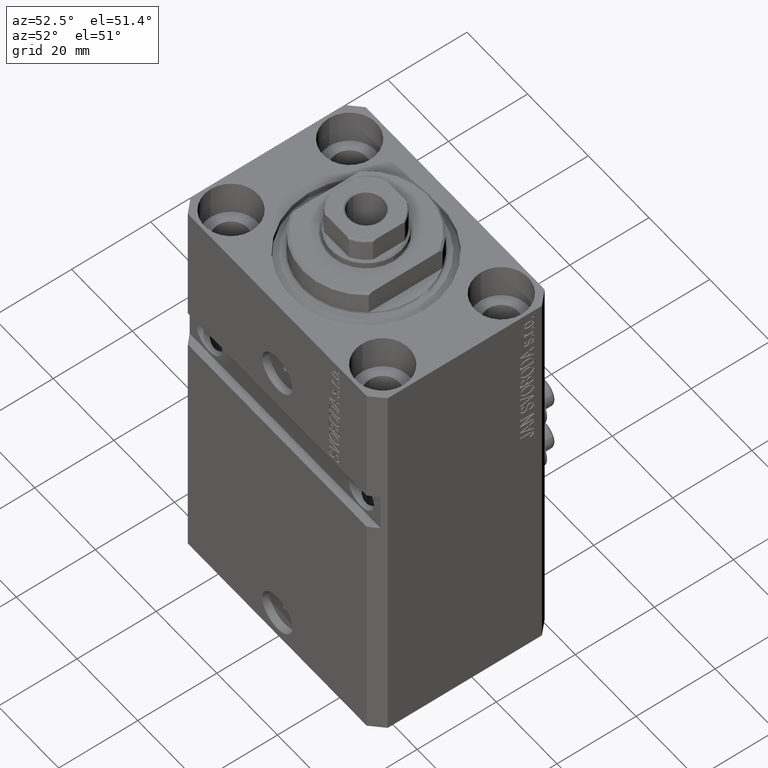
[diagram: clean part render]
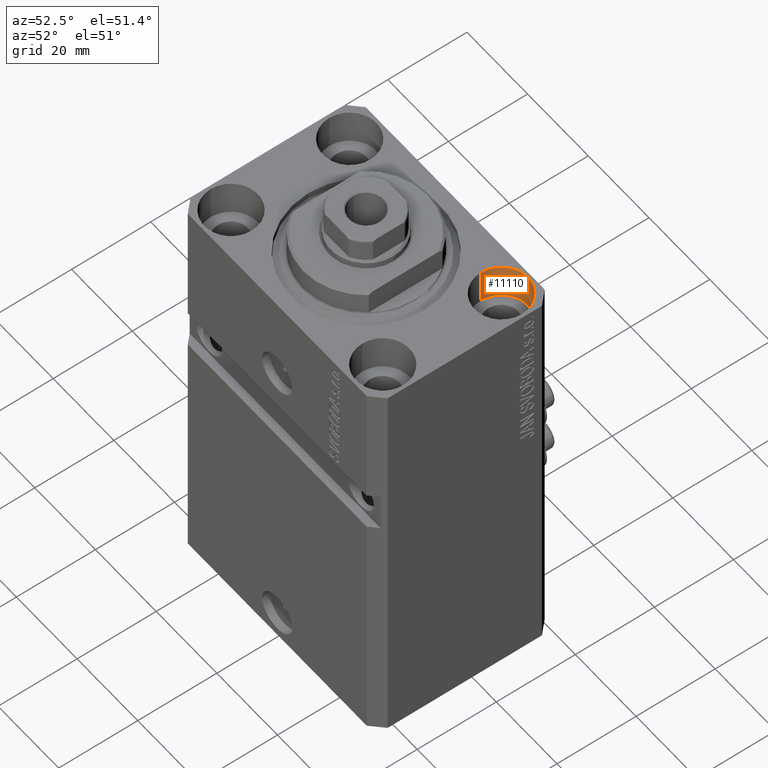
[diagram: same view with one face highlighted and labeled with its STEP entity id]
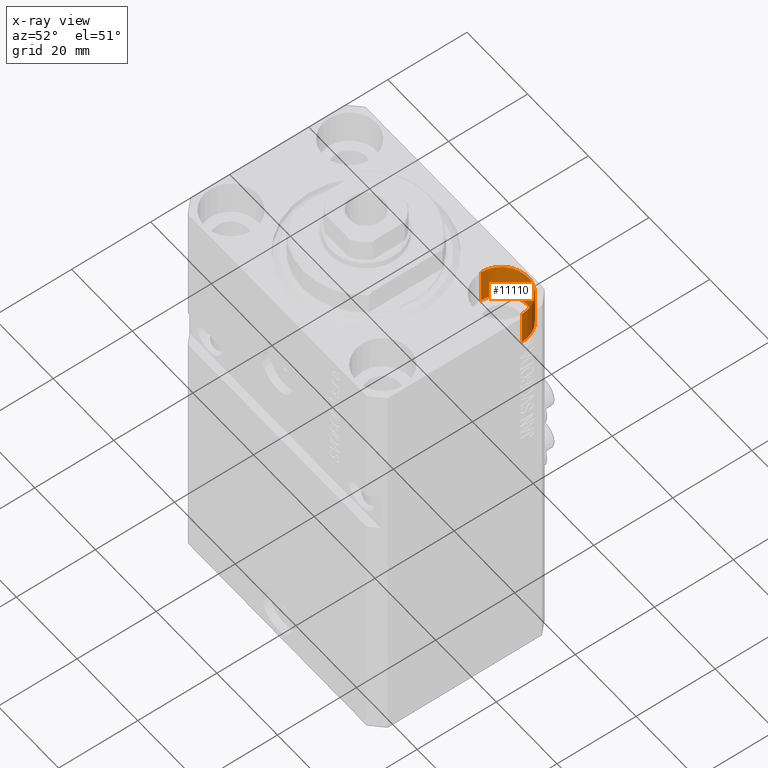
[diagram: x-ray of the same camera — body ghosted, the highlighted face saturated]
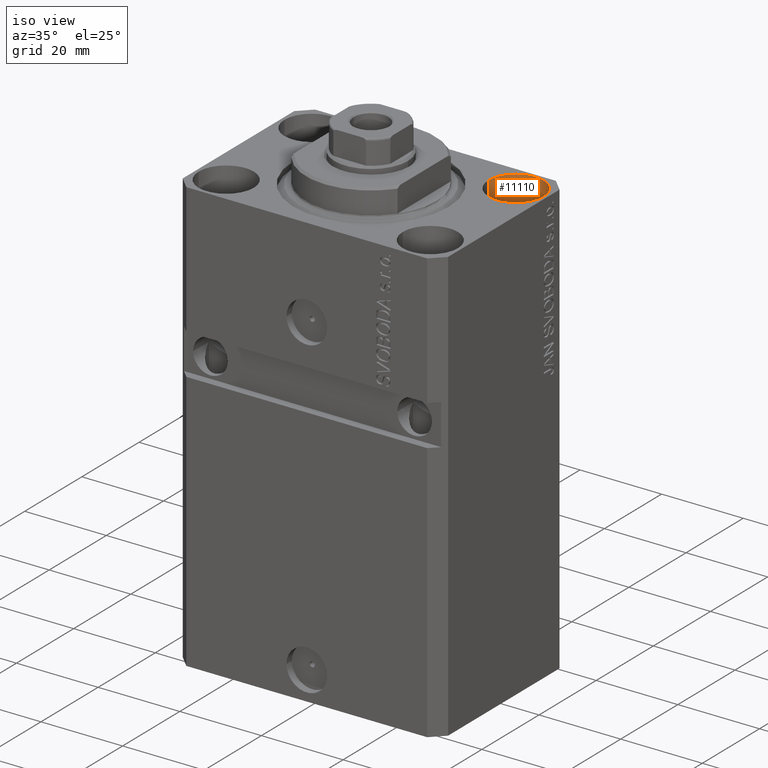
[diagram: same view with one face highlighted and labeled with its STEP entity id]
A machine part, auxiliary view. The second image highlights one B-rep face of the part: STEP entity #11110.
The next image is the same camera in x-ray: the body ghosted, the highlighted face saturated — about 0% of this face is hidden behind the body in this view.
A second angle (iso view) of the same face is appended — the face is thin or edge-on in the first view.
In plain terms, the highlighted cylindrical surface (edge-blend (fillet) strip) has radius 6.75 mm, axis along (0, 0, 1).
Its self-contained STEP definition (entity closure, byte-faithful):
#1056 = LINE ( 'NONE', #29948, #35958 ) ;
#1074 = AXIS2_PLACEMENT_3D ( 'NONE', #46585, #42305, #9625 ) ;
#2759 = VECTOR ( 'NONE', #3758, 1000.000000000000000 ) ;
#3758 = DIRECTION ( 'NONE',  ( -0.000000000000000000, -0.000000000000000000, 1.000000000000000000 ) ) ;
#5204 = EDGE_CURVE ( 'NONE', #46651, #22496, #29529, .T. ) ;
#7320 = DIRECTION ( 'NONE',  ( 1.000000000000000000, 0.000000000000000000, 0.000000000000000000 ) ) ;
#9625 = DIRECTION ( 'NONE',  ( 1.000000000000000000, 0.000000000000000000, 0.000000000000000000 ) ) ;
#9808 = ORIENTED_EDGE ( 'NONE', *, *, #36382, .F. ) ;
#11110 = ADVANCED_FACE ( 'NONE', ( #46677 ), #21639, .F. ) ;
#13921 = AXIS2_PLACEMENT_3D ( 'NONE', #17195, #20304, #7320 ) ;
#14495 = VERTEX_POINT ( 'NONE', #35868 ) ;
#17195 = CARTESIAN_POINT ( 'NONE',  ( 24.99999999999999645, 15.00000000000000888, 0.000000000000000000 ) ) ;
#17677 = ORIENTED_EDGE ( 'NONE', *, *, #29801, .F. ) ;
#18810 = CARTESIAN_POINT ( 'NONE',  ( 31.74999999995845101, 15.00000000000000888, 0.000000000000000000 ) ) ;
#20304 = DIRECTION ( 'NONE',  ( 0.000000000000000000, 0.000000000000000000, 1.000000000000000000 ) ) ;
#20330 = VERTEX_POINT ( 'NONE', #38335 ) ;
#21639 = CYLINDRICAL_SURFACE ( 'NONE', #41809, 6.749999999958452790 ) ;
#22496 = VERTEX_POINT ( 'NONE', #18810 ) ;
#22664 = ORIENTED_EDGE ( 'NONE', *, *, #24818, .T. ) ;
#23430 = CARTESIAN_POINT ( 'NONE',  ( 31.74999999995845101, 15.00000000000000888, -9.000000000000000000 ) ) ;
#24818 = EDGE_CURVE ( 'NONE', #22496, #14495, #34493, .T. ) ;
#24924 = ORIENTED_EDGE ( 'NONE', *, *, #5204, .T. ) ;
#29529 = LINE ( 'NONE', #47169, #2759 ) ;
#29801 = EDGE_CURVE ( 'NONE', #20330, #14495, #1056, .T. ) ;
#29948 = CARTESIAN_POINT ( 'NONE',  ( 18.25000000004154543, 15.00000000000000888, -9.000000000000000000 ) ) ;
#32604 = DIRECTION ( 'NONE',  ( -0.000000000000000000, -0.000000000000000000, 1.000000000000000000 ) ) ;
#34493 = CIRCLE ( 'NONE', #13921, 6.749999999958452790 ) ;
#35291 = EDGE_LOOP ( 'NONE', ( #17677, #9808, #24924, #22664 ) ) ;
#35868 = CARTESIAN_POINT ( 'NONE',  ( 18.25000000004154543, 15.00000000000000888, 0.000000000000000000 ) ) ;
#35958 = VECTOR ( 'NONE', #44476, 1000.000000000000000 ) ;
#36382 = EDGE_CURVE ( 'NONE', #46651, #20330, #42992, .T. ) ;
#38335 = CARTESIAN_POINT ( 'NONE',  ( 18.25000000004154543, 15.00000000000000888, -9.000000000000000000 ) ) ;
#41809 = AXIS2_PLACEMENT_3D ( 'NONE', #47125, #32604, #43327 ) ;
#42305 = DIRECTION ( 'NONE',  ( 0.000000000000000000, 0.000000000000000000, 1.000000000000000000 ) ) ;
#42992 = CIRCLE ( 'NONE', #1074, 6.749999999958452790 ) ;
#43327 = DIRECTION ( 'NONE',  ( 1.000000000000000000, 0.000000000000000000, 0.000000000000000000 ) ) ;
#44476 = DIRECTION ( 'NONE',  ( -0.000000000000000000, -0.000000000000000000, 1.000000000000000000 ) ) ;
#46585 = CARTESIAN_POINT ( 'NONE',  ( 24.99999999999999645, 15.00000000000000888, -9.000000000000000000 ) ) ;
#46651 = VERTEX_POINT ( 'NONE', #23430 ) ;
#46677 = FACE_OUTER_BOUND ( 'NONE', #35291, .T. ) ;
#47125 = CARTESIAN_POINT ( 'NONE',  ( 24.99999999999999645, 15.00000000000000888, -9.000000000000000000 ) ) ;
#47169 = CARTESIAN_POINT ( 'NONE',  ( 31.74999999995845101, 15.00000000000000888, -9.000000000000000000 ) ) ;